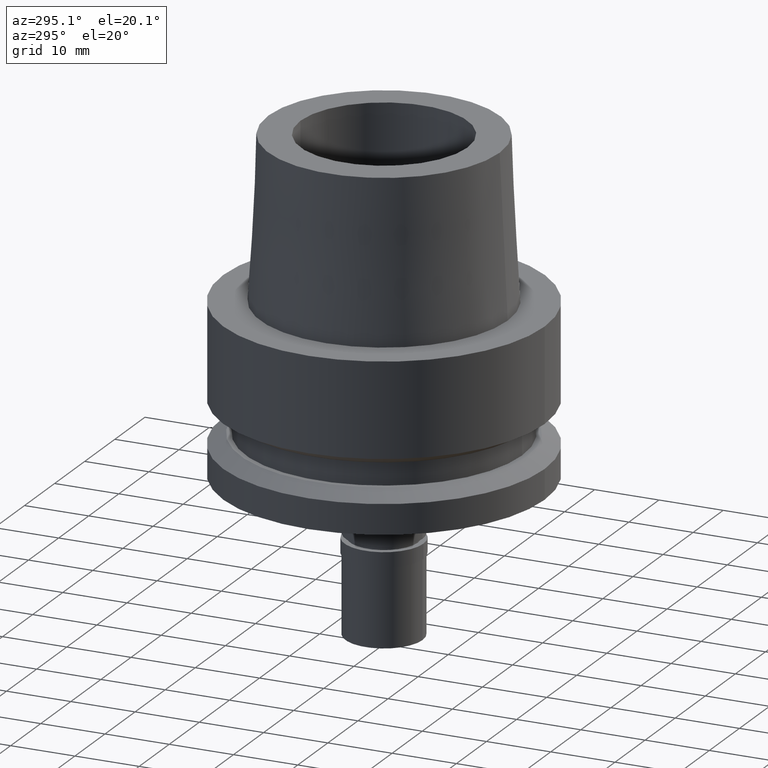
[diagram: clean part render]
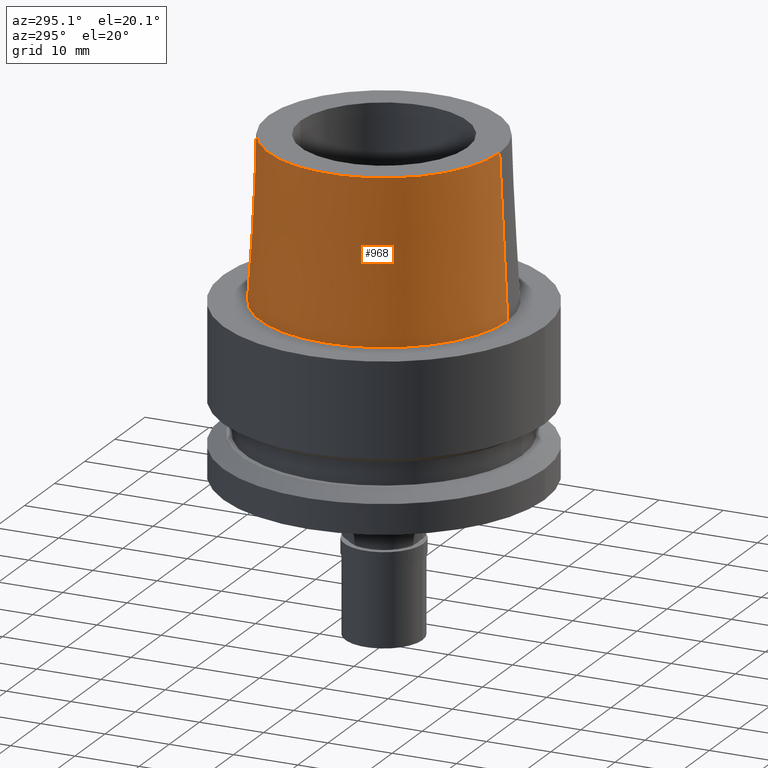
[diagram: same view with one face highlighted and labeled with its STEP entity id]
A machine part, auxiliary view. The second image highlights one B-rep face of the part: STEP entity #968.
In plain terms, the highlighted conical surface has half-angle 2.862 deg.
Its self-contained STEP definition (entity closure, byte-faithful):
#12 = VERTEX_POINT ( 'NONE', #1792 ) ;
#160 = VECTOR ( 'NONE', #1628, 999.9999999999998863 ) ;
#253 = DIRECTION ( 'NONE',  ( 0.0000000000000000000, -1.000000000000000000, 0.0000000000000000000 ) ) ;
#303 = CARTESIAN_POINT ( 'NONE',  ( 0.0000000000000000000, 0.0000000000000000000, 12.50000000000000000 ) ) ;
#349 = EDGE_CURVE ( 'NONE', #1603, #12, #438, .T. ) ;
#438 = LINE ( 'NONE', #2556, #1063 ) ;
#457 = AXIS2_PLACEMENT_3D ( 'NONE', #303, #1953, #253 ) ;
#507 = DIRECTION ( 'NONE',  ( 0.0000000000000000000, 1.000000000000000000, 0.0000000000000000000 ) ) ;
#611 = CARTESIAN_POINT ( 'NONE',  ( 0.0000000000000000000, 0.0000000000000000000, 25.00000000000000000 ) ) ;
#675 = FACE_OUTER_BOUND ( 'NONE', #1797, .T. ) ;
#801 = CIRCLE ( 'NONE', #2025, 19.24999954280000125 ) ;
#807 = ORIENTED_EDGE ( 'NONE', *, *, #1023, .T. ) ;
#850 = CIRCLE ( 'NONE', #2247, 18.00000182882000033 ) ;
#968 = ADVANCED_FACE ( 'NONE', ( #675 ), #1772, .T. ) ;
#1023 = EDGE_CURVE ( 'NONE', #12, #1593, #801, .T. ) ;
#1063 = VECTOR ( 'NONE', #1525, 999.9999999999998863 ) ;
#1098 = DIRECTION ( 'NONE',  ( 0.0000000000000000000, 0.0000000000000000000, 1.000000000000000000 ) ) ;
#1184 = LINE ( 'NONE', #2222, #160 ) ;
#1254 = CARTESIAN_POINT ( 'NONE',  ( 0.0000000000000000000, -18.00000182882000033, 25.00000000000000000 ) ) ;
#1525 = DIRECTION ( 'NONE',  ( 0.0000000000000000000, 0.04993752584486958745, -0.9987523434327917338 ) ) ;
#1593 = VERTEX_POINT ( 'NONE', #2626 ) ;
#1603 = VERTEX_POINT ( 'NONE', #1830 ) ;
#1628 = DIRECTION ( 'NONE',  ( 0.0000000000000000000, -0.04993752584486958745, -0.9987523434327917338 ) ) ;
#1772 = CONICAL_SURFACE ( 'NONE', #457, 18.62500068580999724, 0.04995830450907576964 ) ;
#1787 = ORIENTED_EDGE ( 'NONE', *, *, #349, .T. ) ;
#1792 = CARTESIAN_POINT ( 'NONE',  ( 0.0000000000000000000, 19.24999954280000125, 2.664535259100000578E-13 ) ) ;
#1797 = EDGE_LOOP ( 'NONE', ( #807, #2336, #2476, #1787 ) ) ;
#1830 = CARTESIAN_POINT ( 'NONE',  ( 0.0000000000000000000, 18.00000182882000033, 25.00000000000000000 ) ) ;
#1953 = DIRECTION ( 'NONE',  ( 0.0000000000000000000, 0.0000000000000000000, -1.000000000000000000 ) ) ;
#2025 = AXIS2_PLACEMENT_3D ( 'NONE', #2154, #1098, #507 ) ;
#2081 = EDGE_CURVE ( 'NONE', #2651, #1603, #850, .T. ) ;
#2096 = DIRECTION ( 'NONE',  ( 0.0000000000000000000, -1.000000000000000000, 0.0000000000000000000 ) ) ;
#2154 = CARTESIAN_POINT ( 'NONE',  ( 0.0000000000000000000, 0.0000000000000000000, 3.979039320256999774E-13 ) ) ;
#2222 = CARTESIAN_POINT ( 'NONE',  ( 0.0000000000000000000, -18.00000182882000033, 25.00000000000000000 ) ) ;
#2247 = AXIS2_PLACEMENT_3D ( 'NONE', #611, #2276, #2096 ) ;
#2276 = DIRECTION ( 'NONE',  ( 0.0000000000000000000, 0.0000000000000000000, -1.000000000000000000 ) ) ;
#2284 = EDGE_CURVE ( 'NONE', #2651, #1593, #1184, .T. ) ;
#2336 = ORIENTED_EDGE ( 'NONE', *, *, #2284, .F. ) ;
#2476 = ORIENTED_EDGE ( 'NONE', *, *, #2081, .T. ) ;
#2556 = CARTESIAN_POINT ( 'NONE',  ( 0.0000000000000000000, 18.00000182882000033, 25.00000000000000000 ) ) ;
#2626 = CARTESIAN_POINT ( 'NONE',  ( 0.0000000000000000000, -19.24999954280000125, 2.664535259100000578E-13 ) ) ;
#2651 = VERTEX_POINT ( 'NONE', #1254 ) ;